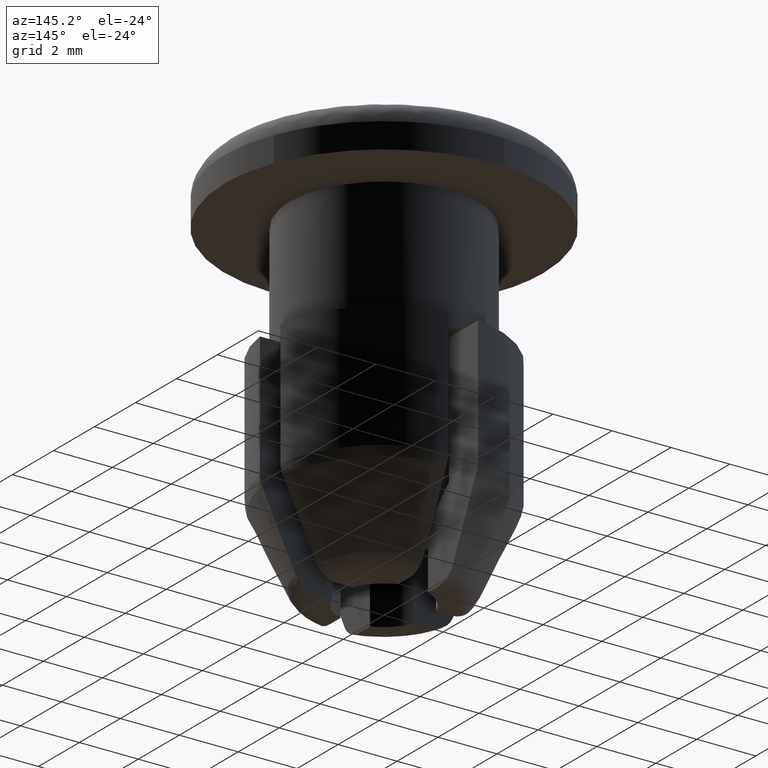
[diagram: clean part render]
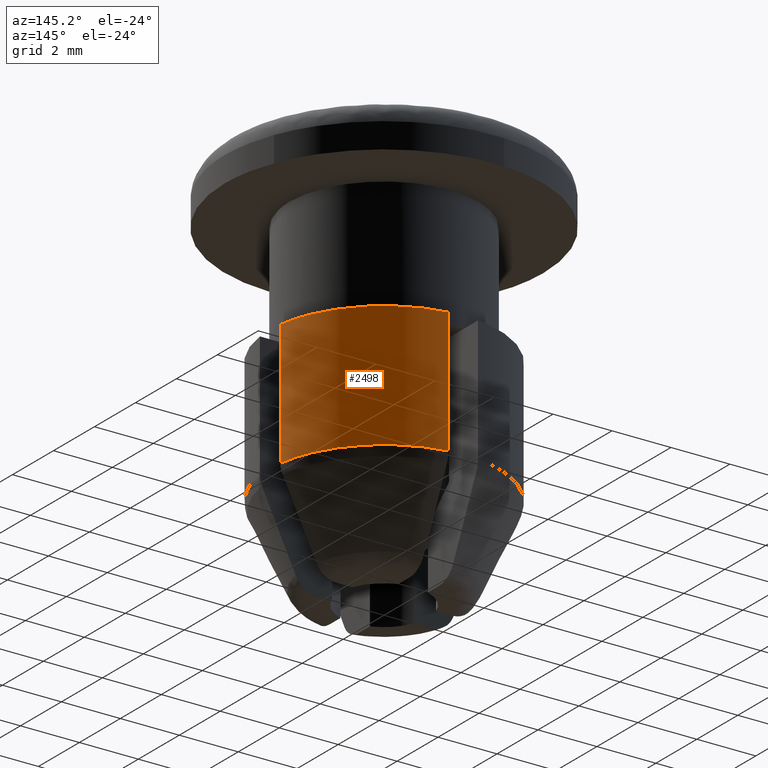
[diagram: same view with one face highlighted and labeled with its STEP entity id]
A machine part, auxiliary view. The second image highlights one B-rep face of the part: STEP entity #2498.
In plain terms, the highlighted face is a freeform B-spline surface patch.
Its self-contained STEP definition (entity closure, byte-faithful):
#2230=CARTESIAN_POINT('',(3.867815921162755,0.500000000000000,-10.333900000000000));
#2231=VERTEX_POINT('',#2230);
#2242=CARTESIAN_POINT('',(0.500000000000000,3.867815921162760,-10.333900000000000));
#2243=VERTEX_POINT('',#2242);
#2256=CARTESIAN_POINT('',(0.499999999999998,3.867815921162744,-10.333900000000000));
#2257=CARTESIAN_POINT('',(3.482289609849445,3.482289609849446,-10.333900000000000));
#2258=CARTESIAN_POINT('',(3.867815921162743,0.499999999999999,-10.333900000000000));
#2266=(BOUNDED_CURVE()B_SPLINE_CURVE(2,(#2256,#2257,#2258),.UNSPECIFIED.,.F.,.U.)CURVE()GEOMETRIC_REPRESENTATION_ITEM()QUASI_UNIFORM_CURVE()RATIONAL_B_SPLINE_CURVE((1.0,0.791926219699677,1.0))REPRESENTATION_ITEM(''));
#2267=EDGE_CURVE('',#2243,#2231,#2266,.T.);
#2454=CARTESIAN_POINT('',(3.884353047075144,0.349000581200143,-5.994152499999897));
#2455=CARTESIAN_POINT('',(3.884353047075144,0.349000581200143,-10.442393687500010));
#2456=CARTESIAN_POINT('',(3.586371146354920,3.665519138434481,-5.994152499999896));
#2457=CARTESIAN_POINT('',(3.586371146354920,3.665519138434481,-10.442393687500005));
#2458=CARTESIAN_POINT('',(0.264138964030749,3.891044924911657,-5.994152499999897));
#2459=CARTESIAN_POINT('',(0.264138964030749,3.891044924911657,-10.442393687499999));
#2467=(BOUNDED_SURFACE()B_SPLINE_SURFACE(1,2,((#2454,#2456,#2458),(#2455,#2457,#2459)),.UNSPECIFIED.,.F.,.F.,.U.)B_SPLINE_SURFACE_WITH_KNOTS((2,2),(3,3),(0.0,4.448241187500107),(0.0,5.753764371168079),.UNSPECIFIED.)GEOMETRIC_REPRESENTATION_ITEM()RATIONAL_B_SPLINE_SURFACE(((1.0,0.758018902936983,0.993470649676024),(1.0,0.758018902936983,0.993470649676024)))REPRESENTATION_ITEM('')SURFACE());
#2468=CARTESIAN_POINT('',(3.867815921162740,0.500000000000000,-6.099999999999901));
#2469=VERTEX_POINT('',#2468);
#2470=CARTESIAN_POINT('',(3.867815921162755,0.500000000000000,-10.333900000000000));
#2471=CARTESIAN_POINT('',(3.867815921162740,0.500000000000000,-6.099999999999901));
#2472=QUASI_UNIFORM_CURVE('',1,(#2470,#2471),.UNSPECIFIED.,.F.,.U.);
#2473=EDGE_CURVE('',#2231,#2469,#2472,.T.);
#2474=ORIENTED_EDGE('',*,*,#2473,.F.);
#2475=ORIENTED_EDGE('',*,*,#2267,.F.);
#2476=CARTESIAN_POINT('',(0.500000000000000,3.867815921162740,-6.099999999999901));
#2477=VERTEX_POINT('',#2476);
#2478=CARTESIAN_POINT('',(0.500000000000000,3.867815921162740,-6.099999999999901));
#2479=CARTESIAN_POINT('',(0.500000000000000,3.867815921162760,-10.333900000000000));
#2480=QUASI_UNIFORM_CURVE('',1,(#2478,#2479),.UNSPECIFIED.,.F.,.U.);
#2481=EDGE_CURVE('',#2477,#2243,#2480,.T.);
#2482=ORIENTED_EDGE('',*,*,#2481,.F.);
#2483=CARTESIAN_POINT('',(0.500000000000001,3.867815921162743,-6.099999999999901));
#2484=CARTESIAN_POINT('',(3.482289609849445,3.482289609849444,-6.099999999999902));
#2485=CARTESIAN_POINT('',(3.867815921162743,0.500000000000001,-6.099999999999901));
#2493=(BOUNDED_CURVE()B_SPLINE_CURVE(2,(#2483,#2484,#2485),.UNSPECIFIED.,.F.,.U.)CURVE()GEOMETRIC_REPRESENTATION_ITEM()QUASI_UNIFORM_CURVE()RATIONAL_B_SPLINE_CURVE((1.0,0.791926219699678,1.0))REPRESENTATION_ITEM(''));
#2494=EDGE_CURVE('',#2477,#2469,#2493,.T.);
#2495=ORIENTED_EDGE('',*,*,#2494,.T.);
#2496=EDGE_LOOP('',(#2474,#2475,#2482,#2495));
#2497=FACE_OUTER_BOUND('',#2496,.T.);
#2498=ADVANCED_FACE('',(#2497),#2467,.T.);